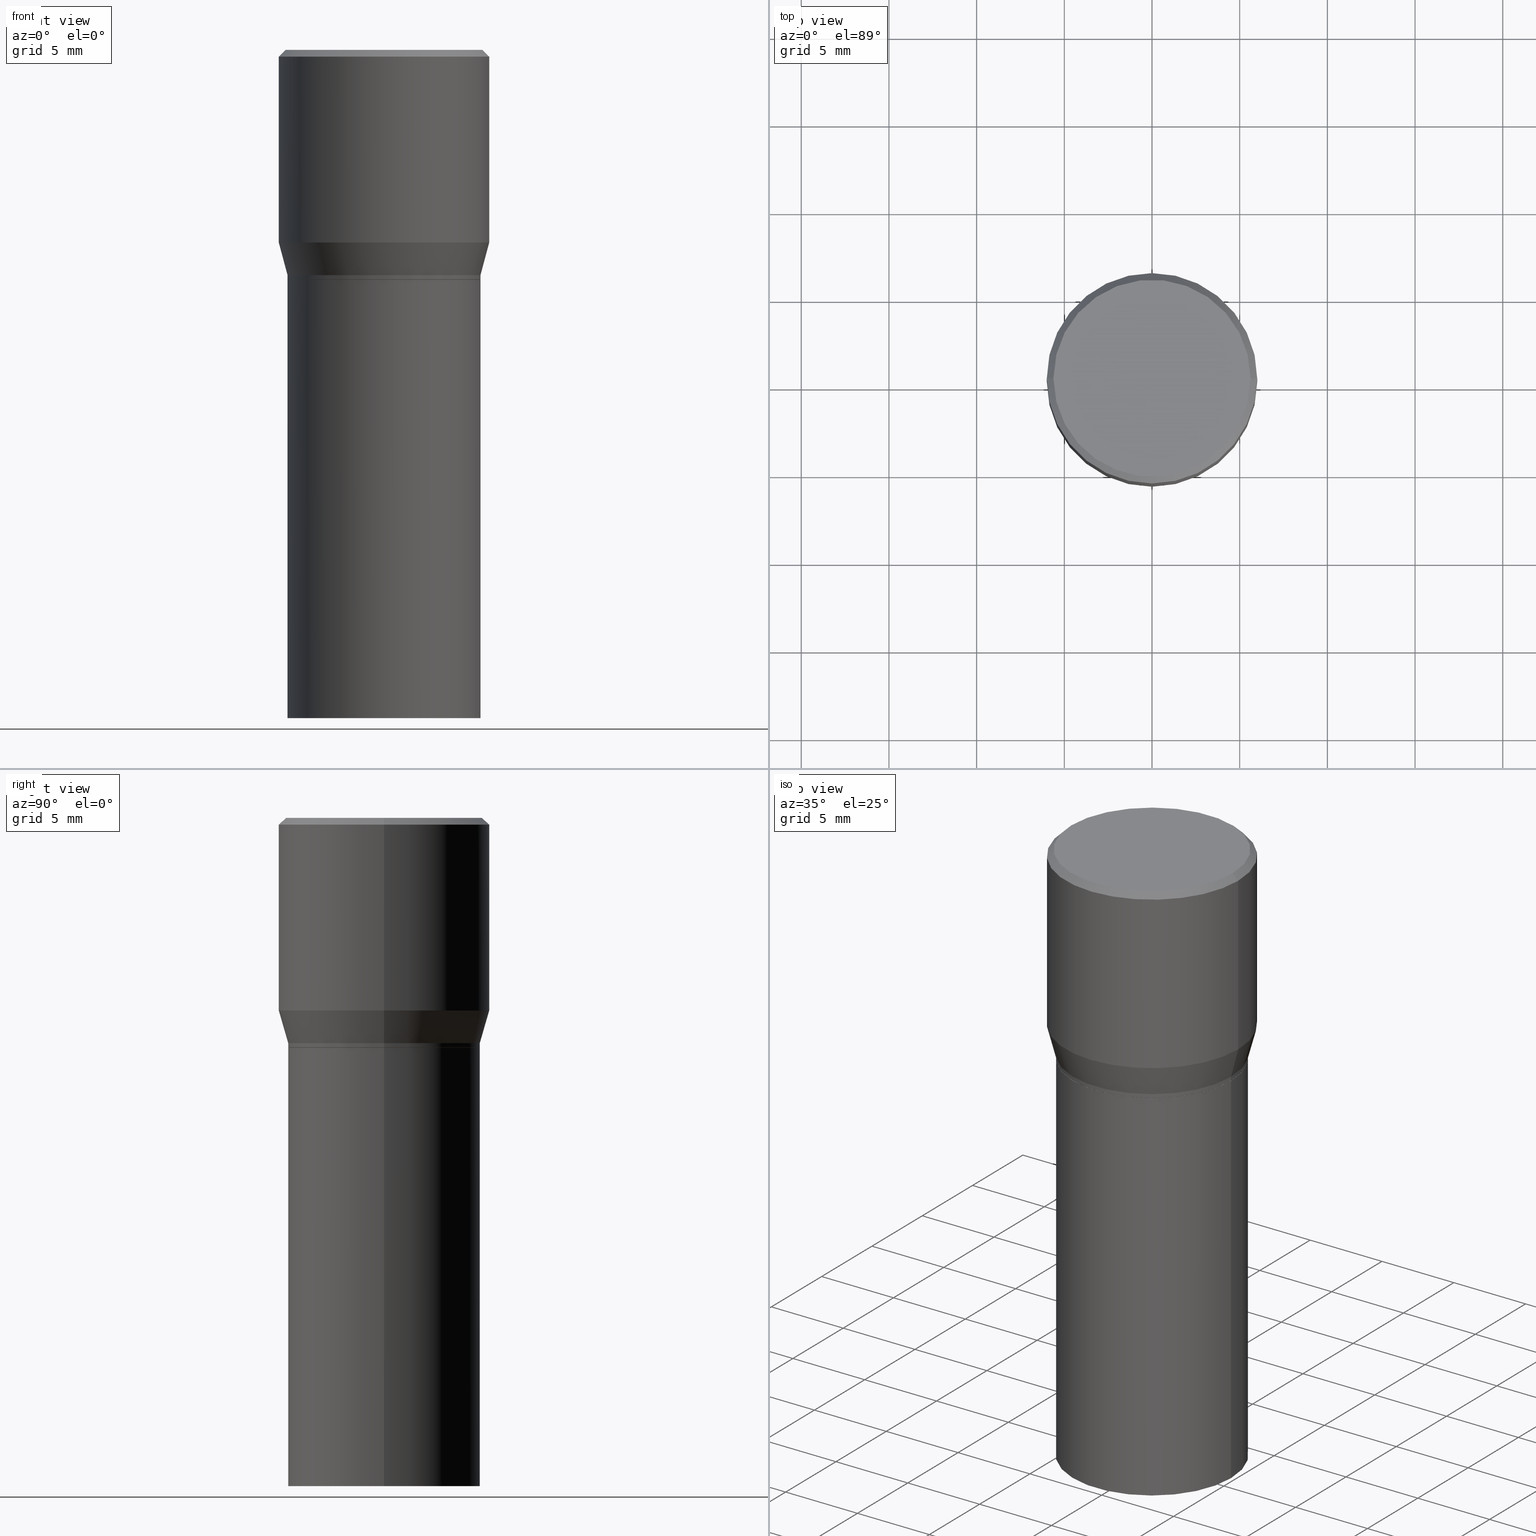
[diagram: canonical four-view strip — front | top / right | iso, engineering-drawing reading convention]
A machine part, canonical four-view strip (front | top / right | iso — engineering-drawing reading convention). The complete STEP part file that produces these views, byte-faithful:
ISO-10303-21;
HEADER;
FILE_DESCRIPTION (( 'STEP AP203' ),
    '1' );
FILE_NAME ('48557.STEP',
    '2024-03-12T19:34:08',
    ( '' ),
    ( '' ),
    'SwSTEP 2.0',
    'SolidWorks 2023',
    '' );
FILE_SCHEMA (( 'CONFIG_CONTROL_DESIGN' ));
ENDSEC;

DATA;
#1 = EDGE_CURVE ( 'NONE', #254, #329, #35, .T. ) ;
#2 = COORDINATED_UNIVERSAL_TIME_OFFSET ( 5, 0, .BEHIND. ) ;
#3 = CONICAL_SURFACE ( 'NONE', #295, 0.2160500000000000198, 0.7853981633974824739 ) ;
#4 = APPROVAL_STATUS ( 'not_yet_approved' ) ;
#5 = ADVANCED_FACE ( 'NONE', ( #237 ), #180, .T. ) ;
#6 = CC_DESIGN_DATE_AND_TIME_ASSIGNMENT ( #183, #152, ( #232 ) ) ;
#7 = APPROVAL_ROLE ( '' ) ;
#8 = PERSON_AND_ORGANIZATION_ROLE ( 'classification_officer' ) ;
#9 = VERTEX_POINT ( 'NONE', #136 ) ;
#10 = AXIS2_PLACEMENT_3D ( 'NONE', #450, #162, #415 ) ;
#11 = LOCAL_TIME ( 15, 34, 8.000000000000000000, #88 ) ;
#12 = APPROVAL_STATUS ( 'not_yet_approved' ) ;
#13 = VERTEX_POINT ( 'NONE', #310 ) ;
#14 = CC_DESIGN_PERSON_AND_ORGANIZATION_ASSIGNMENT ( #218, #124, ( #232 ) ) ;
#15 = ORIENTED_EDGE ( 'NONE', *, *, #197, .F. ) ;
#16 = ORIENTED_EDGE ( 'NONE', *, *, #362, .T. ) ;
#17 = CARTESIAN_POINT ( 'NONE',  ( 3.668203209277704895E-29, -5.237222008264718177E-15, -1.500000000000000222 ) ) ;
#18 = ADVANCED_FACE ( 'NONE', ( #207 ), #58, .F. ) ;
#19 = VECTOR ( 'NONE', #29, 39.37007874015748854 ) ;
#20 = CARTESIAN_POINT ( 'NONE',  ( -0.2160500000000000198, -2.627801186576033655E-16, -0.5157000000000001583 ) ) ;
#21 = PLANE ( 'NONE',  #10 ) ;
#22 = DIRECTION ( 'NONE',  ( -2.445468806185136877E-29, 3.491481338843145188E-15, 1.000000000000000000 ) ) ;
#23 = EDGE_CURVE ( 'NONE', #329, #254, #172, .T. ) ;
#24 = CARTESIAN_POINT ( 'NONE',  ( 0.2160500000000000198, -3.309226012955529172E-15, -0.5157000000000001583 ) ) ;
#25 = CARTESIAN_POINT ( 'NONE',  ( -0.2165500000000000480, -2.269618187644819696E-16, -0.5057000000000001494 ) ) ;
#26 = AXIS2_PLACEMENT_3D ( 'NONE', #133, #228, #455 ) ;
#27 = SECURITY_CLASSIFICATION ( '', '', #253 ) ;
#28 = LINE ( 'NONE', #24, #83 ) ;
#29 = DIRECTION ( 'NONE',  ( -0.7071067811865715536, 7.493145998870439357E-15, 0.7071067811865232589 ) ) ;
#30 = ADVANCED_FACE ( 'NONE', ( #449 ), #448, .T. ) ;
#31 = DIRECTION ( 'NONE',  ( -2.445468806185136597E-29, 3.491481338843145583E-15, 1.000000000000000000 ) ) ;
#32 = CARTESIAN_POINT ( 'NONE',  ( 0.2212000000000000077, -1.595182002131672613E-15, 4.701447564593453826E-17 ) ) ;
#33 = APPLICATION_CONTEXT ( 'configuration controlled 3d designs of mechanical parts and assemblies' ) ;
#34 = FACE_OUTER_BOUND ( 'NONE', #224, .T. ) ;
#35 = CIRCLE ( 'NONE', #156, 0.2165500000000000203 ) ;
#36 = AXIS2_PLACEMENT_3D ( 'NONE', #122, #81, #354 ) ;
#37 = DIRECTION ( 'NONE',  ( -2.445468806185136597E-29, 3.491481338843145583E-15, 1.000000000000000000 ) ) ;
#38 = EDGE_LOOP ( 'NONE', ( #191, #111, #443, #261 ) ) ;
#39 = DIRECTION ( 'NONE',  ( -2.445468806185136597E-29, 3.491481338843145583E-15, 1.000000000000000000 ) ) ;
#40 = DATE_AND_TIME ( #217, #462 ) ;
#41 = PERSON_AND_ORGANIZATION ( #60, #190 ) ;
#42 = CONICAL_SURFACE ( 'NONE', #91, 0.2165500000000000480, 0.2617993877991494078 ) ;
#43 = AXIS2_PLACEMENT_3D ( 'NONE', #208, #349, #464 ) ;
#44 = DESIGN_CONTEXT ( 'detailed design', #33, 'design' ) ;
#45 = ORIENTED_EDGE ( 'NONE', *, *, #360, .F. ) ;
#46 = APPROVAL_DATE_TIME ( #262, #273 ) ;
#47 = EDGE_LOOP ( 'NONE', ( #161, #327 ) ) ;
#48 = PERSON_AND_ORGANIZATION_ROLE ( 'design_supplier' ) ;
#49 = ORIENTED_EDGE ( 'NONE', *, *, #252, .F. ) ;
#50 = VECTOR ( 'NONE', #168, 39.37007874015748143 ) ;
#51 = LOCAL_TIME ( 15, 34, 8.000000000000000000, #82 ) ;
#52 = ORIENTED_EDGE ( 'NONE', *, *, #296, .T. ) ;
#53 = ORIENTED_EDGE ( 'NONE', *, *, #258, .F. ) ;
#54 = CARTESIAN_POINT ( 'NONE',  ( 3.668203209277705088E-31, -5.237222008264718399E-17, -0.01499999999999999944 ) ) ;
#55 = VERTEX_POINT ( 'NONE', #20 ) ;
#56 = CARTESIAN_POINT ( 'NONE',  ( 1.236673575287824021E-29, -1.765642113052979313E-15, -0.5057000000000001494 ) ) ;
#57 = CIRCLE ( 'NONE', #374, 0.2361999999999999933 ) ;
#58 = PLANE ( 'NONE',  #330 ) ;
#59 = CARTESIAN_POINT ( 'NONE',  ( 3.668203209277705088E-31, -5.237222008264718399E-17, -0.01499999999999999944 ) ) ;
#60 = PERSON ( 'UNSPECIFIED', 'UNSPECIFIED', 'UNSPECIFIED', ('UNSPECIFIED'), ('UNSPECIFIED'), ('UNSPECIFIED') ) ;
#61 = FACE_OUTER_BOUND ( 'NONE', #121, .T. ) ;
#62 = DIRECTION ( 'NONE',  ( 1.000000000000000000, -6.982962677686267499E-15, 0.000000000000000000 ) ) ;
#63 = DIRECTION ( 'NONE',  ( 0.7071067811865715536, -2.468850131082509496E-15, 0.7071067811865232589 ) ) ;
#64 = AXIS2_PLACEMENT_3D ( 'NONE', #17, #343, #340 ) ;
#65 = APPROVAL_PERSON_ORGANIZATION ( #189, #307, #7 ) ;
#66 = DIRECTION ( 'NONE',  ( -2.445468806185136597E-29, 3.491481338843145583E-15, 1.000000000000000000 ) ) ;
#67 = FACE_OUTER_BOUND ( 'NONE', #409, .T. ) ;
#68 = DIRECTION ( 'NONE',  ( -2.438088387897960049E-29, 3.491481338843145188E-15, 1.000000000000000000 ) ) ;
#69 = PLANE ( 'NONE',  #43 ) ;
#70 = EDGE_CURVE ( 'NONE', #13, #363, #445, .T. ) ;
#71 = CARTESIAN_POINT ( 'NONE',  ( -1.149724336312568861E-45, 1.641501643732376549E-31, 4.701447564592356200E-17 ) ) ;
#72 = EDGE_LOOP ( 'NONE', ( #402, #87, #221, #45 ) ) ;
#73 = APPROVAL_PERSON_ORGANIZATION ( #437, #273, #153 ) ;
#74 = DIRECTION ( 'NONE',  ( -2.438088387897960049E-29, 3.491481338843145188E-15, 1.000000000000000000 ) ) ;
#75 = ORIENTED_EDGE ( 'NONE', *, *, #245, .T. ) ;
#76 = EDGE_CURVE ( 'NONE', #369, #284, #211, .T. ) ;
#77 = CARTESIAN_POINT ( 'NONE',  ( -0.2165500000000000203, -2.601308914834925589E-16, -0.5152000000000002133 ) ) ;
#78 = DIRECTION ( 'NONE',  ( -2.445468806185136877E-29, 3.491481338843145188E-15, 1.000000000000000000 ) ) ;
#79 = ADVANCED_BREP_SHAPE_REPRESENTATION ( '48557', ( #453, #281, #430 ), #352 ) ;
#80 = VERTEX_POINT ( 'NONE', #198 ) ;
#81 = DIRECTION ( 'NONE',  ( -2.445468806185136597E-29, 3.491481338843145583E-15, 1.000000000000000000 ) ) ;
#82 = COORDINATED_UNIVERSAL_TIME_OFFSET ( 5, 0, .BEHIND. ) ;
#83 = VECTOR ( 'NONE', #63, 39.37007874015748854 ) ;
#84 = ORIENTED_EDGE ( 'NONE', *, *, #452, .F. ) ;
#85 = CIRCLE ( 'NONE', #98, 0.2361999999999999933 ) ;
#86 = APPLICATION_PROTOCOL_DEFINITION ( 'international standard', 'config_control_design', 1994, #33 ) ;
#87 = ORIENTED_EDGE ( 'NONE', *, *, #23, .T. ) ;
#88 = COORDINATED_UNIVERSAL_TIME_OFFSET ( 5, 0, .BEHIND. ) ;
#89 = ORIENTED_EDGE ( 'NONE', *, *, #362, .F. ) ;
#90 = ORIENTED_EDGE ( 'NONE', *, *, #197, .T. ) ;
#91 = AXIS2_PLACEMENT_3D ( 'NONE', #56, #101, #167 ) ;
#92 = VERTEX_POINT ( 'NONE', #142 ) ;
#93 = CARTESIAN_POINT ( 'NONE',  ( 0.2361999999999999933, -1.672821847156282947E-15, -0.01499999999999999944 ) ) ;
#94 = ADVANCED_FACE ( 'NONE', ( #269 ), #314, .T. ) ;
#95 = EDGE_LOOP ( 'NONE', ( #49, #399 ) ) ;
#96 = DIRECTION ( 'NONE',  ( 1.000000000000000000, -6.982962677686265133E-15, 0.000000000000000000 ) ) ;
#97 = CIRCLE ( 'NONE', #188, 0.2212000000000000077 ) ;
#98 = AXIS2_PLACEMENT_3D ( 'NONE', #106, #395, #460 ) ;
#99 = DIRECTION ( 'NONE',  ( -2.445468806185136597E-29, 3.491481338843145583E-15, 1.000000000000000000 ) ) ;
#100 = CARTESIAN_POINT ( 'NONE',  ( 1.261128263349675426E-29, -1.800556926441410962E-15, -0.5157000000000001583 ) ) ;
#101 = DIRECTION ( 'NONE',  ( -2.445468806185136597E-29, 3.491481338843145583E-15, 1.000000000000000000 ) ) ;
#102 = DIRECTION ( 'NONE',  ( -2.445468806185136597E-29, 3.491481338843145583E-15, 1.000000000000000000 ) ) ;
#103 = DIRECTION ( 'NONE',  ( 1.000000000000000000, -6.982962677686267499E-15, 4.877828720335458505E-29 ) ) ;
#104 = VECTOR ( 'NONE', #131, 39.37007874015748143 ) ;
#105 = CYLINDRICAL_SURFACE ( 'NONE', #400, 0.2165500000000000480 ) ;
#106 = CARTESIAN_POINT ( 'NONE',  ( 1.057335613469222325E-29, -1.509595033060739709E-15, -0.4323652016312719004 ) ) ;
#107 = CARTESIAN_POINT ( 'NONE',  ( -0.2165500000000000480, -2.912745497993258696E-17, -0.5057000000000001494 ) ) ;
#108 = EDGE_LOOP ( 'NONE', ( #446, #393, #129, #263 ) ) ;
#109 = EDGE_CURVE ( 'NONE', #55, #80, #344, .T. ) ;
#110 = LENGTH_MEASURE_WITH_UNIT ( LENGTH_MEASURE( 0.02539999999999999897 ), #389 );
#111 = ORIENTED_EDGE ( 'NONE', *, *, #109, .T. ) ;
#112 = CONICAL_SURFACE ( 'NONE', #119, 0.2361999999999999933, 0.7853981633974459475 ) ;
#113 = FACE_OUTER_BOUND ( 'NONE', #192, .T. ) ;
#114 = PERSON_AND_ORGANIZATION_ROLE ( 'creator' ) ;
#115 = ORIENTED_EDGE ( 'NONE', *, *, #383, .T. ) ;
#116 = APPROVAL_ROLE ( '' ) ;
#117 = ORIENTED_EDGE ( 'NONE', *, *, #70, .F. ) ;
#118 = ADVANCED_FACE ( 'NONE', ( #61 ), #112, .T. ) ;
#119 = AXIS2_PLACEMENT_3D ( 'NONE', #457, #205, #200 ) ;
#120 = APPROVAL_DATE_TIME ( #323, #307 ) ;
#121 = EDGE_LOOP ( 'NONE', ( #53, #15, #219, #438 ) ) ;
#122 = CARTESIAN_POINT ( 'NONE',  ( 0.000000000000000000, 0.000000000000000000, 0.000000000000000000 ) ) ;
#123 = ORIENTED_EDGE ( 'NONE', *, *, #291, .T. ) ;
#124 = PERSON_AND_ORGANIZATION_ROLE ( 'creator' ) ;
#125 = ORIENTED_EDGE ( 'NONE', *, *, #141, .T. ) ;
#126 = ADVANCED_FACE ( 'NONE', ( #454 ), #105, .T. ) ;
#127 = VERTEX_POINT ( 'NONE', #342 ) ;
#128 = DIRECTION ( 'NONE',  ( -2.445468806185136877E-29, 3.491481338843145188E-15, 1.000000000000000000 ) ) ;
#129 = ORIENTED_EDGE ( 'NONE', *, *, #226, .T. ) ;
#130 = CC_DESIGN_PERSON_AND_ORGANIZATION_ASSIGNMENT ( #328, #114, ( #223 ) ) ;
#131 = DIRECTION ( 'NONE',  ( 0.7071067811865459074, -7.319954787623251312E-15, -0.7071067811865492381 ) ) ;
#132 = DIRECTION ( 'NONE',  ( -2.445468806185136597E-29, 3.491481338843145583E-15, 1.000000000000000000 ) ) ;
#133 = CARTESIAN_POINT ( 'NONE',  ( 3.668203209277705088E-31, -5.237222008264718399E-17, -0.01499999999999999944 ) ) ;
#134 = DIRECTION ( 'NONE',  ( 1.000000000000000000, -6.982962677686265133E-15, 0.000000000000000000 ) ) ;
#135 = FACE_OUTER_BOUND ( 'NONE', #47, .T. ) ;
#136 = CARTESIAN_POINT ( 'NONE',  ( 0.2165500000000000480, -3.277802680905940530E-15, -0.5057000000000001494 ) ) ;
#137 = LINE ( 'NONE', #272, #317 ) ;
#138 = DIRECTION ( 'NONE',  ( -2.445468806185136597E-29, 3.491481338843145583E-15, 1.000000000000000000 ) ) ;
#139 = CARTESIAN_POINT ( 'NONE',  ( 0.000000000000000000, 0.000000000000000000, 0.000000000000000000 ) ) ;
#140 = EDGE_CURVE ( 'NONE', #80, #254, #28, .T. ) ;
#141 = EDGE_CURVE ( 'NONE', #92, #363, #411, .T. ) ;
#142 = CARTESIAN_POINT ( 'NONE',  ( 0.2165500000000000203, -6.749382576117678999E-15, -1.500000000000000222 ) ) ;
#143 = CARTESIAN_POINT ( 'NONE',  ( 1.236673575287824021E-29, -1.765642113052979313E-15, -0.5057000000000001494 ) ) ;
#144 = CARTESIAN_POINT ( 'NONE',  ( 0.2361999999999999933, -1.649375784469496131E-15, 1.151752954443000088E-29 ) ) ;
#145 = VECTOR ( 'NONE', #239, 39.37007874015748854 ) ;
#146 = CARTESIAN_POINT ( 'NONE',  ( 0.000000000000000000, 0.000000000000000000, 0.000000000000000000 ) ) ;
#147 = DIRECTION ( 'NONE',  ( -2.445468806185136597E-29, 3.491481338843145583E-15, 1.000000000000000000 ) ) ;
#148 = EDGE_CURVE ( 'NONE', #363, #13, #420, .T. ) ;
#149 = EDGE_LOOP ( 'NONE', ( #163, #332, #334, #266 ) ) ;
#150 = CIRCLE ( 'NONE', #461, 0.2165500000000000203 ) ;
#151 = APPROVAL_PERSON_ORGANIZATION ( #159, #289, #116 ) ;
#152 = DATE_TIME_ROLE ( 'creation_date' ) ;
#153 = APPROVAL_ROLE ( '' ) ;
#154 = APPROVAL_DATE_TIME ( #364, #289 ) ;
#155 = EDGE_LOOP ( 'NONE', ( #425, #193, #16, #405 ) ) ;
#156 = AXIS2_PLACEMENT_3D ( 'NONE', #306, #233, #347 ) ;
#157 = AXIS2_PLACEMENT_3D ( 'NONE', #143, #175, #313 ) ;
#158 = ORIENTED_EDGE ( 'NONE', *, *, #325, .T. ) ;
#159 = PERSON_AND_ORGANIZATION ( #60, #190 ) ;
#160 = ORIENTED_EDGE ( 'NONE', *, *, #226, .F. ) ;
#161 = ORIENTED_EDGE ( 'NONE', *, *, #148, .T. ) ;
#162 = DIRECTION ( 'NONE',  ( 2.438088387897960049E-29, -3.491481338843145188E-15, -1.000000000000000000 ) ) ;
#163 = ORIENTED_EDGE ( 'NONE', *, *, #1, .T. ) ;
#164 = CONICAL_SURFACE ( 'NONE', #26, 0.2361999999999999933, 0.7853981633974459475 ) ;
#165 = EDGE_CURVE ( 'NONE', #254, #9, #375, .T. ) ;
#166 = DIRECTION ( 'NONE',  ( -2.445468806185136597E-29, 3.491481338843145583E-15, 1.000000000000000000 ) ) ;
#167 = DIRECTION ( 'NONE',  ( 1.000000000000000000, -6.982962677686266711E-15, 0.000000000000000000 ) ) ;
#168 = DIRECTION ( 'NONE',  ( -2.445468806185136877E-29, 3.491481338843145188E-15, 1.000000000000000000 ) ) ;
#169 = FACE_OUTER_BOUND ( 'NONE', #297, .T. ) ;
#170 = CARTESIAN_POINT ( 'NONE',  ( 0.000000000000000000, 0.000000000000000000, 0.000000000000000000 ) ) ;
#171 = DIRECTION ( 'NONE',  ( -0.2588190451025206840, 5.211531920934545520E-15, 0.9659258262890682012 ) ) ;
#172 = CIRCLE ( 'NONE', #401, 0.2165500000000000203 ) ;
#173 = AXIS2_PLACEMENT_3D ( 'NONE', #419, #74, #275 ) ;
#174 = DIRECTION ( 'NONE',  ( -2.445468806185136597E-29, 3.491481338843145583E-15, 1.000000000000000000 ) ) ;
#175 = DIRECTION ( 'NONE',  ( -2.445468806185136597E-29, 3.491481338843145583E-15, 1.000000000000000000 ) ) ;
#176 = DIRECTION ( 'NONE',  ( 1.000000000000000000, -6.982962677686268288E-15, 0.000000000000000000 ) ) ;
#177 = DIRECTION ( 'NONE',  ( -2.445468806185136597E-29, 3.491481338843145583E-15, 1.000000000000000000 ) ) ;
#178 = EDGE_CURVE ( 'NONE', #329, #322, #418, .T. ) ;
#179 = CARTESIAN_POINT ( 'NONE',  ( 0.2165500000000000480, -3.277802680905940530E-15, -0.5057000000000001494 ) ) ;
#180 = CONICAL_SURFACE ( 'NONE', #406, 0.2160500000000000198, 0.7853981633974824739 ) ;
#181 = DIRECTION ( 'NONE',  ( 1.000000000000000000, -6.982962677686267499E-15, 0.000000000000000000 ) ) ;
#182 = FACE_OUTER_BOUND ( 'NONE', #427, .T. ) ;
#183 = DATE_AND_TIME ( #432, #359 ) ;
#184 = AXIS2_PLACEMENT_3D ( 'NONE', #247, #37, #283 ) ;
#185 = PERSON_AND_ORGANIZATION_ROLE ( 'design_owner' ) ;
#186 = DIRECTION ( 'NONE',  ( 1.000000000000000000, 0.000000000000000000, 0.000000000000000000 ) ) ;
#187 = VERTEX_POINT ( 'NONE', #357 ) ;
#188 = AXIS2_PLACEMENT_3D ( 'NONE', #422, #382, #103 ) ;
#189 = PERSON_AND_ORGANIZATION ( #60, #190 ) ;
#190 = ORGANIZATION ( 'UNSPECIFIED', 'UNSPECIFIED', '' ) ;
#191 = ORIENTED_EDGE ( 'NONE', *, *, #356, .F. ) ;
#192 = EDGE_LOOP ( 'NONE', ( #288, #305, #351, #160 ) ) ;
#193 = ORIENTED_EDGE ( 'NONE', *, *, #360, .T. ) ;
#194 = CIRCLE ( 'NONE', #64, 0.2165500000000000203 ) ;
#195 = ORIENTED_EDGE ( 'NONE', *, *, #109, .F. ) ;
#196 = AXIS2_PLACEMENT_3D ( 'NONE', #377, #102, #416 ) ;
#197 = EDGE_CURVE ( 'NONE', #436, #404, #222, .T. ) ;
#198 = CARTESIAN_POINT ( 'NONE',  ( 0.2160500000000000198, -3.309226012955529172E-15, -0.5157000000000001583 ) ) ;
#199 = DIRECTION ( 'NONE',  ( 1.000000000000000000, -6.982962677686264344E-15, 0.000000000000000000 ) ) ;
#200 = DIRECTION ( 'NONE',  ( -1.000000000000000000, 6.982962677686266711E-15, 0.000000000000000000 ) ) ;
#201 = LINE ( 'NONE', #25, #304 ) ;
#202 = DIMENSIONAL_EXPONENTS ( 1.000000000000000000, 0.000000000000000000, 0.000000000000000000, 0.000000000000000000, 0.000000000000000000, 0.000000000000000000, 0.000000000000000000 ) ;
#203 = CARTESIAN_POINT ( 'NONE',  ( 0.2165500000000000203, -1.512160567852961217E-15, 1.055936080798610036E-29 ) ) ;
#204 = AXIS2_PLACEMENT_3D ( 'NONE', #459, #166, #176 ) ;
#205 = DIRECTION ( 'NONE',  ( 2.445468806185136597E-29, -3.491481338843145583E-15, -1.000000000000000000 ) ) ;
#206 = CARTESIAN_POINT ( 'NONE',  ( 0.2165500000000000203, -3.312717494294371784E-15, -0.5157000000000001583 ) ) ;
#207 = FACE_OUTER_BOUND ( 'NONE', #246, .T. ) ;
#208 = CARTESIAN_POINT ( 'NONE',  ( 1.544631344304202170E-15, 0.2212000000000000077, -7.488084343291421542E-16 ) ) ;
#209 = ORIENTED_EDGE ( 'NONE', *, *, #241, .T. ) ;
#210 = ADVANCED_FACE ( 'NONE', ( #320 ), #396, .T. ) ;
#211 = CIRCLE ( 'NONE', #204, 0.2361999999999999933 ) ;
#212 = DIRECTION ( 'NONE',  ( 1.000000000000000000, -6.982962677686267499E-15, 4.877828720335458505E-29 ) ) ;
#213 = FACE_OUTER_BOUND ( 'NONE', #95, .T. ) ;
#214 = CARTESIAN_POINT ( 'NONE',  ( -0.2160500000000000198, -2.654293458317144186E-16, -0.5157000000000001583 ) ) ;
#215 =( NAMED_UNIT ( * ) SI_UNIT ( $, .STERADIAN. ) SOLID_ANGLE_UNIT ( ) );
#216 = VECTOR ( 'NONE', #128, 39.37007874015748143 ) ;
#217 = CALENDAR_DATE ( 2024, 12, 3 ) ;
#218 = PERSON_AND_ORGANIZATION ( #60, #190 ) ;
#219 = ORIENTED_EDGE ( 'NONE', *, *, #376, .T. ) ;
#220 = APPROVAL_STATUS ( 'not_yet_approved' ) ;
#221 = ORIENTED_EDGE ( 'NONE', *, *, #165, .T. ) ;
#222 = CIRCLE ( 'NONE', #331, 0.2212000000000000077 ) ;
#223 = PRODUCT_DEFINITION_FORMATION_WITH_SPECIFIED_SOURCE ( 'ANY', '', #441, .NOT_KNOWN. ) ;
#224 = EDGE_LOOP ( 'NONE', ( #90, #158 ) ) ;
#225 = ORIENTED_EDGE ( 'NONE', *, *, #140, .F. ) ;
#226 = EDGE_CURVE ( 'NONE', #284, #127, #367, .T. ) ;
#227 = ORIENTED_EDGE ( 'NONE', *, *, #148, .F. ) ;
#228 = DIRECTION ( 'NONE',  ( 2.445468806185136597E-29, -3.491481338843145583E-15, -1.000000000000000000 ) ) ;
#229 = VECTOR ( 'NONE', #267, 39.37007874015748143 ) ;
#230 = DIRECTION ( 'NONE',  ( 1.000000000000000000, -6.982962677686266711E-15, 0.000000000000000000 ) ) ;
#231 = AXIS2_PLACEMENT_3D ( 'NONE', #146, #244, #316 ) ;
#232 = PRODUCT_DEFINITION ( 'UNKNOWN', '', #223, #44 ) ;
#233 = DIRECTION ( 'NONE',  ( -2.445468806185136597E-29, 3.491481338843145583E-15, 1.000000000000000000 ) ) ;
#234 = DIRECTION ( 'NONE',  ( -2.445468806185136597E-29, 3.491481338843145583E-15, 1.000000000000000000 ) ) ;
#235 = DIRECTION ( 'NONE',  ( 1.000000000000000000, -6.982962677686265922E-15, 4.876176775795935793E-29 ) ) ;
#236 = DIRECTION ( 'NONE',  ( -2.445468806185136877E-29, 3.491481338843145188E-15, 1.000000000000000000 ) ) ;
#237 = FACE_OUTER_BOUND ( 'NONE', #365, .T. ) ;
#238 = CC_DESIGN_DATE_AND_TIME_ASSIGNMENT ( #40, #431, ( #27 ) ) ;
#239 = DIRECTION ( 'NONE',  ( 0.2588190451025206840, 1.565188264969626504E-15, 0.9659258262890682012 ) ) ;
#240 = VECTOR ( 'NONE', #22, 39.37007874015748143 ) ;
#241 = EDGE_CURVE ( 'NONE', #187, #92, #194, .T. ) ;
#242 = DIRECTION ( 'NONE',  ( 1.000000000000000000, -6.982962677686266711E-15, 4.876176775795935793E-29 ) ) ;
#243 = CARTESIAN_POINT ( 'NONE',  ( -0.2361999999999999933, 1.597003564386848854E-15, -0.01499999999999999944 ) ) ;
#244 = DIRECTION ( 'NONE',  ( -2.445468806185136597E-29, 3.491481338843145583E-15, 1.000000000000000000 ) ) ;
#245 = EDGE_CURVE ( 'NONE', #127, #339, #268, .T. ) ;
#246 = EDGE_LOOP ( 'NONE', ( #442, #195 ) ) ;
#247 = CARTESIAN_POINT ( 'NONE',  ( 1.236673575287824021E-29, -1.765642113052979313E-15, -0.5057000000000001494 ) ) ;
#248 = CIRCLE ( 'NONE', #309, 0.2160500000000000198 ) ;
#249 = CYLINDRICAL_SURFACE ( 'NONE', #278, 0.2361999999999999933 ) ;
#250 = ADVANCED_FACE ( 'NONE', ( #169 ), #164, .T. ) ;
#251 =( NAMED_UNIT ( * ) PLANE_ANGLE_UNIT ( ) SI_UNIT ( $, .RADIAN. ) );
#252 = EDGE_CURVE ( 'NONE', #92, #187, #150, .T. ) ;
#253 = SECURITY_CLASSIFICATION_LEVEL ( 'unclassified' ) ;
#254 = VERTEX_POINT ( 'NONE', #447 ) ;
#255 = VECTOR ( 'NONE', #78, 39.37007874015748143 ) ;
#256 = LOCAL_TIME ( 15, 34, 8.000000000000000000, #2 ) ;
#257 = SHAPE_DEFINITION_REPRESENTATION ( #300, #79 ) ;
#258 = EDGE_CURVE ( 'NONE', #404, #127, #346, .T. ) ;
#259 = ORIENTED_EDGE ( 'NONE', *, *, #356, .T. ) ;
#260 = CARTESIAN_POINT ( 'NONE',  ( 0.000000000000000000, 0.000000000000000000, 0.000000000000000000 ) ) ;
#261 = ORIENTED_EDGE ( 'NONE', *, *, #23, .F. ) ;
#262 = DATE_AND_TIME ( #433, #11 ) ;
#263 = ORIENTED_EDGE ( 'NONE', *, *, #301, .F. ) ;
#264 = ORIENTED_EDGE ( 'NONE', *, *, #252, .T. ) ;
#265 = ADVANCED_FACE ( 'NONE', ( #135 ), #21, .F. ) ;
#266 = ORIENTED_EDGE ( 'NONE', *, *, #165, .F. ) ;
#267 = DIRECTION ( 'NONE',  ( -2.445468806185136877E-29, 3.491481338843145188E-15, 1.000000000000000000 ) ) ;
#268 = CIRCLE ( 'NONE', #392, 0.2361999999999999933 ) ;
#269 = FACE_OUTER_BOUND ( 'NONE', #108, .T. ) ;
#270 = CARTESIAN_POINT ( 'NONE',  ( 1.261128263349675426E-29, -1.800556926441410962E-15, -0.5157000000000001583 ) ) ;
#271 = CARTESIAN_POINT ( 'NONE',  ( 0.000000000000000000, 0.000000000000000000, 0.000000000000000000 ) ) ;
#272 = CARTESIAN_POINT ( 'NONE',  ( -0.2361999999999999933, 1.678301941865356591E-15, -1.161852468318208757E-29 ) ) ;
#273 = APPROVAL ( #4, 'UNSPECIFIED' ) ;
#274 = CARTESIAN_POINT ( 'NONE',  ( 0.2165500000000000480, -1.512160567852961414E-15, 1.055936080798610176E-29 ) ) ;
#275 = DIRECTION ( 'NONE',  ( 1.000000000000000000, -6.982962677686265922E-15, 4.876176775795935793E-29 ) ) ;
#276 = DIRECTION ( 'NONE',  ( 1.000000000000000000, -6.982962677686266711E-15, 4.876176775795936353E-29 ) ) ;
#277 = LINE ( 'NONE', #179, #145 ) ;
#278 = AXIS2_PLACEMENT_3D ( 'NONE', #139, #39, #319 ) ;
#279 = ADVANCED_FACE ( 'NONE', ( #417 ), #42, .T. ) ;
#280 = CARTESIAN_POINT ( 'NONE',  ( -0.2212000000000000077, 1.570817454345525709E-15, 4.701447564591266586E-17 ) ) ;
#281 = MANIFOLD_SOLID_BREP ( 'Body-Move/Copy2[2]', #373 ) ;
#282 = DIRECTION ( 'NONE',  ( -2.445468806185136597E-29, 3.491481338843145583E-15, 1.000000000000000000 ) ) ;
#283 = DIRECTION ( 'NONE',  ( 1.000000000000000000, -6.982962677686266711E-15, 0.000000000000000000 ) ) ;
#284 = VERTEX_POINT ( 'NONE', #378 ) ;
#285 = ADVANCED_FACE ( 'NONE', ( #370 ), #3, .T. ) ;
#286 = DIRECTION ( 'NONE',  ( 1.000000000000000000, -6.982962677686266711E-15, 0.000000000000000000 ) ) ;
#287 = PERSON_AND_ORGANIZATION ( #60, #190 ) ;
#288 = ORIENTED_EDGE ( 'NONE', *, *, #452, .T. ) ;
#289 = APPROVAL ( #220, 'UNSPECIFIED' ) ;
#290 = MECHANICAL_CONTEXT ( 'NONE', #439, 'mechanical' ) ;
#291 = EDGE_CURVE ( 'NONE', #322, #369, #201, .T. ) ;
#292 = EDGE_CURVE ( 'NONE', #369, #339, #137, .T. ) ;
#293 = PERSON_AND_ORGANIZATION ( #60, #190 ) ;
#294 = ORIENTED_EDGE ( 'NONE', *, *, #376, .F. ) ;
#295 = AXIS2_PLACEMENT_3D ( 'NONE', #270, #410, #62 ) ;
#296 = EDGE_CURVE ( 'NONE', #187, #13, #303, .T. ) ;
#297 = EDGE_LOOP ( 'NONE', ( #302, #407, #75, #294 ) ) ;
#298 = CALENDAR_DATE ( 2024, 12, 3 ) ;
#299 = ORIENTED_EDGE ( 'NONE', *, *, #388, .T. ) ;
#300 = PRODUCT_DEFINITION_SHAPE ( 'NONE', 'NONE',  #232 ) ;
#301 = EDGE_CURVE ( 'NONE', #339, #127, #57, .T. ) ;
#302 = ORIENTED_EDGE ( 'NONE', *, *, #325, .F. ) ;
#303 = LINE ( 'NONE', #444, #216 ) ;
#304 = VECTOR ( 'NONE', #171, 39.37007874015748854 ) ;
#305 = ORIENTED_EDGE ( 'NONE', *, *, #292, .T. ) ;
#306 = CARTESIAN_POINT ( 'NONE',  ( 1.259905528946582905E-29, -1.798811185771989458E-15, -0.5152000000000002133 ) ) ;
#307 = APPROVAL ( #12, 'UNSPECIFIED' ) ;
#308 = CARTESIAN_POINT ( 'NONE',  ( 1.261128263349675426E-29, -1.800556926441410962E-15, -0.5157000000000001583 ) ) ;
#309 = AXIS2_PLACEMENT_3D ( 'NONE', #458, #147, #181 ) ;
#310 = CARTESIAN_POINT ( 'NONE',  ( -0.2165500000000000203, -1.980209173064567670E-15, -0.5157000000000001583 ) ) ;
#311 = DIRECTION ( 'NONE',  ( 1.000000000000000000, -6.982962677686266711E-15, 0.000000000000000000 ) ) ;
#312 = CARTESIAN_POINT ( 'NONE',  ( 1.261128263349675426E-29, -1.800556926441410962E-15, -0.5157000000000001583 ) ) ;
#313 = DIRECTION ( 'NONE',  ( 1.000000000000000000, -6.982962677686266711E-15, 0.000000000000000000 ) ) ;
#314 = CYLINDRICAL_SURFACE ( 'NONE', #429, 0.2361999999999999933 ) ;
#315 = DIRECTION ( 'NONE',  ( -0.7071067811865459074, 2.468850131082239706E-15, -0.7071067811865492381 ) ) ;
#316 = DIRECTION ( 'NONE',  ( 1.000000000000000000, -6.982962677686266711E-15, 4.876176775795935793E-29 ) ) ;
#317 = VECTOR ( 'NONE', #236, 39.37007874015748143 ) ;
#318 = CC_DESIGN_APPROVAL ( #307, ( #27 ) ) ;
#319 = DIRECTION ( 'NONE',  ( 1.000000000000000000, -6.982962677686266711E-15, 4.876176775795936353E-29 ) ) ;
#320 = FACE_OUTER_BOUND ( 'NONE', #368, .T. ) ;
#321 = CYLINDRICAL_SURFACE ( 'NONE', #231, 0.2165500000000000203 ) ;
#322 = VERTEX_POINT ( 'NONE', #107 ) ;
#323 = DATE_AND_TIME ( #298, #256 ) ;
#324 = CIRCLE ( 'NONE', #394, 0.2165500000000000480 ) ;
#325 = EDGE_CURVE ( 'NONE', #404, #436, #97, .T. ) ;
#326 = CALENDAR_DATE ( 2024, 12, 3 ) ;
#327 = ORIENTED_EDGE ( 'NONE', *, *, #70, .T. ) ;
#328 = PERSON_AND_ORGANIZATION ( #60, #190 ) ;
#329 = VERTEX_POINT ( 'NONE', #77 ) ;
#330 = AXIS2_PLACEMENT_3D ( 'NONE', #308, #68, #235 ) ;
#331 = AXIS2_PLACEMENT_3D ( 'NONE', #71, #282, #212 ) ;
#332 = ORIENTED_EDGE ( 'NONE', *, *, #178, .T. ) ;
#333 = ADVANCED_FACE ( 'NONE', ( #67 ), #380, .T. ) ;
#334 = ORIENTED_EDGE ( 'NONE', *, *, #388, .F. ) ;
#335 = ORIENTED_EDGE ( 'NONE', *, *, #1, .F. ) ;
#336 = CIRCLE ( 'NONE', #157, 0.2165500000000000480 ) ;
#337 = PRODUCT_RELATED_PRODUCT_CATEGORY ( 'detail', '', ( #441 ) ) ;
#338 = CC_DESIGN_SECURITY_CLASSIFICATION ( #27, ( #223 ) ) ;
#339 = VERTEX_POINT ( 'NONE', #385 ) ;
#340 = DIRECTION ( 'NONE',  ( 1.000000000000000000, -6.982962677686264344E-15, 0.000000000000000000 ) ) ;
#341 = DIRECTION ( 'NONE',  ( 1.000000000000000000, -6.982962677686266711E-15, 4.876176775795935793E-29 ) ) ;
#342 = CARTESIAN_POINT ( 'NONE',  ( 0.2361999999999999933, -1.701748004552143407E-15, -0.01499999999999999944 ) ) ;
#343 = DIRECTION ( 'NONE',  ( -2.445468806185136597E-29, 3.491481338843145583E-15, 1.000000000000000000 ) ) ;
#344 = CIRCLE ( 'NONE', #196, 0.2160500000000000198 ) ;
#345 = CARTESIAN_POINT ( 'NONE',  ( -0.2165500000000000480, 1.538680294288497294E-15, -1.065195393794700063E-29 ) ) ;
#346 = LINE ( 'NONE', #93, #104 ) ;
#347 = DIRECTION ( 'NONE',  ( 1.000000000000000000, -6.982962677686266711E-15, 0.000000000000000000 ) ) ;
#348 = PLANE ( 'NONE',  #173 ) ;
#349 = DIRECTION ( 'NONE',  ( 2.438088387897960049E-29, -3.491481338843145188E-15, -1.000000000000000000 ) ) ;
#350 = DIRECTION ( 'NONE',  ( 1.000000000000000000, -6.982962677686266711E-15, 0.000000000000000000 ) ) ;
#351 = ORIENTED_EDGE ( 'NONE', *, *, #245, .F. ) ;
#352 =( GEOMETRIC_REPRESENTATION_CONTEXT ( 3 ) GLOBAL_UNCERTAINTY_ASSIGNED_CONTEXT ( ( #386 ) ) GLOBAL_UNIT_ASSIGNED_CONTEXT ( ( #426, #251, #215 ) ) REPRESENTATION_CONTEXT ( 'NONE', 'WORKASPACE' ) );
#353 = DIRECTION ( 'NONE',  ( -2.445468806185136597E-29, 3.491481338843145583E-15, 1.000000000000000000 ) ) ;
#354 = DIRECTION ( 'NONE',  ( 1.000000000000000000, -6.982962677686266711E-15, 4.876176775795935793E-29 ) ) ;
#355 = DIRECTION ( 'NONE',  ( 0.000000000000000000, 0.000000000000000000, 1.000000000000000000 ) ) ;
#356 = EDGE_CURVE ( 'NONE', #55, #329, #391, .T. ) ;
#357 = CARTESIAN_POINT ( 'NONE',  ( -0.2165500000000000203, -1.980209173064567670E-15, -1.500000000000000222 ) ) ;
#358 = AXIS2_PLACEMENT_3D ( 'NONE', #271, #66, #341 ) ;
#359 = LOCAL_TIME ( 15, 34, 8.000000000000000000, #440 ) ;
#360 = EDGE_CURVE ( 'NONE', #322, #9, #336, .T. ) ;
#361 = APPLICATION_PROTOCOL_DEFINITION ( 'international standard', 'config_control_design', 1994, #439 ) ;
#362 = EDGE_CURVE ( 'NONE', #9, #284, #277, .T. ) ;
#363 = VERTEX_POINT ( 'NONE', #206 ) ;
#364 = DATE_AND_TIME ( #326, #51 ) ;
#365 = EDGE_LOOP ( 'NONE', ( #115, #259, #335, #225 ) ) ;
#366 = AXIS2_PLACEMENT_3D ( 'NONE', #312, #138, #96 ) ;
#367 = LINE ( 'NONE', #144, #255 ) ;
#368 = EDGE_LOOP ( 'NONE', ( #264, #52, #227, #390 ) ) ;
#369 = VERTEX_POINT ( 'NONE', #465 ) ;
#370 = FACE_OUTER_BOUND ( 'NONE', #38, .T. ) ;
#371 = ORIENTED_EDGE ( 'NONE', *, *, #296, .F. ) ;
#372 = CARTESIAN_POINT ( 'NONE',  ( 3.668203209277704895E-29, -5.237222008264718177E-15, -1.500000000000000222 ) ) ;
#373 = CLOSED_SHELL ( 'NONE', ( #30, #5, #250, #397, #333, #279, #94, #118, #456, #18, #285, #126 ) ) ;
#374 = AXIS2_PLACEMENT_3D ( 'NONE', #54, #353, #286 ) ;
#375 = LINE ( 'NONE', #274, #240 ) ;
#376 = EDGE_CURVE ( 'NONE', #436, #339, #424, .T. ) ;
#377 = CARTESIAN_POINT ( 'NONE',  ( 1.261128263349675426E-29, -1.800556926441410962E-15, -0.5157000000000001583 ) ) ;
#378 = CARTESIAN_POINT ( 'NONE',  ( 0.2361999999999999933, -3.158970817530236235E-15, -0.4323652016312719004 ) ) ;
#379 = CARTESIAN_POINT ( 'NONE',  ( 0.000000000000000000, 0.000000000000000000, 0.000000000000000000 ) ) ;
#380 = CONICAL_SURFACE ( 'NONE', #184, 0.2165500000000000480, 0.2617993877991494078 ) ;
#381 = DIRECTION ( 'NONE',  ( 1.000000000000000000, -6.982962677686267499E-15, 0.000000000000000000 ) ) ;
#382 = DIRECTION ( 'NONE',  ( -2.445468806185136597E-29, 3.491481338843145583E-15, 1.000000000000000000 ) ) ;
#383 = EDGE_CURVE ( 'NONE', #80, #55, #248, .T. ) ;
#384 = CARTESIAN_POINT ( 'NONE',  ( 1.259905528946582905E-29, -1.798811185771989458E-15, -0.5152000000000002133 ) ) ;
#385 = CARTESIAN_POINT ( 'NONE',  ( -0.2361999999999999933, 8.973183152936629998E-16, -0.01499999999999999944 ) ) ;
#386 = UNCERTAINTY_MEASURE_WITH_UNIT (LENGTH_MEASURE( 1.000000000000000082E-05 ), #426, 'distance_accuracy_value', 'NONE');
#387 = CC_DESIGN_PERSON_AND_ORGANIZATION_ASSIGNMENT ( #293, #48, ( #223 ) ) ;
#388 = EDGE_CURVE ( 'NONE', #9, #322, #324, .T. ) ;
#389 =( LENGTH_UNIT ( ) NAMED_UNIT ( * ) SI_UNIT ( $, .METRE. ) );
#390 = ORIENTED_EDGE ( 'NONE', *, *, #141, .F. ) ;
#391 = LINE ( 'NONE', #214, #19 ) ;
#392 = AXIS2_PLACEMENT_3D ( 'NONE', #59, #408, #311 ) ;
#393 = ORIENTED_EDGE ( 'NONE', *, *, #76, .T. ) ;
#394 = AXIS2_PLACEMENT_3D ( 'NONE', #428, #177, #350 ) ;
#395 = DIRECTION ( 'NONE',  ( -2.445468806185136597E-29, 3.491481338843145583E-15, 1.000000000000000000 ) ) ;
#396 = CYLINDRICAL_SURFACE ( 'NONE', #36, 0.2165500000000000203 ) ;
#397 = ADVANCED_FACE ( 'NONE', ( #113 ), #249, .T. ) ;
#398 = COORDINATED_UNIVERSAL_TIME_OFFSET ( 5, 0, .BEHIND. ) ;
#399 = ORIENTED_EDGE ( 'NONE', *, *, #241, .F. ) ;
#400 = AXIS2_PLACEMENT_3D ( 'NONE', #379, #132, #242 ) ;
#401 = AXIS2_PLACEMENT_3D ( 'NONE', #384, #31, #230 ) ;
#402 = ORIENTED_EDGE ( 'NONE', *, *, #178, .F. ) ;
#403 = ADVANCED_FACE ( 'NONE', ( #213 ), #348, .F. ) ;
#404 = VERTEX_POINT ( 'NONE', #32 ) ;
#405 = ORIENTED_EDGE ( 'NONE', *, *, #76, .F. ) ;
#406 = AXIS2_PLACEMENT_3D ( 'NONE', #414, #421, #381 ) ;
#407 = ORIENTED_EDGE ( 'NONE', *, *, #258, .T. ) ;
#408 = DIRECTION ( 'NONE',  ( -2.445468806185136597E-29, 3.491481338843145583E-15, 1.000000000000000000 ) ) ;
#409 = EDGE_LOOP ( 'NONE', ( #299, #123, #84, #89 ) ) ;
#410 = DIRECTION ( 'NONE',  ( -2.445468806185136597E-29, 3.491481338843145583E-15, 1.000000000000000000 ) ) ;
#411 = LINE ( 'NONE', #203, #229 ) ;
#412 = AXIS2_PLACEMENT_3D ( 'NONE', #100, #174, #134 ) ;
#413 = CC_DESIGN_APPROVAL ( #273, ( #232 ) ) ;
#414 = CARTESIAN_POINT ( 'NONE',  ( 1.261128263349675426E-29, -1.800556926441410962E-15, -0.5157000000000001583 ) ) ;
#415 = DIRECTION ( 'NONE',  ( -1.000000000000000000, 6.982962677686265922E-15, -4.876176775795935793E-29 ) ) ;
#416 = DIRECTION ( 'NONE',  ( 1.000000000000000000, -6.982962677686267499E-15, 0.000000000000000000 ) ) ;
#417 = FACE_OUTER_BOUND ( 'NONE', #155, .T. ) ;
#418 = LINE ( 'NONE', #345, #50 ) ;
#419 = CARTESIAN_POINT ( 'NONE',  ( 3.576687321579069994E-29, -5.368277968210015545E-15, -1.500000000000000222 ) ) ;
#420 = CIRCLE ( 'NONE', #366, 0.2165500000000000203 ) ;
#421 = DIRECTION ( 'NONE',  ( -2.445468806185136597E-29, 3.491481338843145583E-15, 1.000000000000000000 ) ) ;
#422 = CARTESIAN_POINT ( 'NONE',  ( -1.149724336312568861E-45, 1.641501643732376549E-31, 4.701447564592356200E-17 ) ) ;
#423 = CC_DESIGN_PERSON_AND_ORGANIZATION_ASSIGNMENT ( #287, #8, ( #27 ) ) ;
#424 = LINE ( 'NONE', #243, #451 ) ;
#425 = ORIENTED_EDGE ( 'NONE', *, *, #291, .F. ) ;
#426 =( CONVERSION_BASED_UNIT ( 'INCH', #110 ) LENGTH_UNIT ( ) NAMED_UNIT ( #202 ) );
#427 = EDGE_LOOP ( 'NONE', ( #371, #209, #125, #117 ) ) ;
#428 = CARTESIAN_POINT ( 'NONE',  ( 1.236673575287824021E-29, -1.765642113052979313E-15, -0.5057000000000001494 ) ) ;
#429 = AXIS2_PLACEMENT_3D ( 'NONE', #170, #99, #276 ) ;
#430 = AXIS2_PLACEMENT_3D ( 'NONE', #260, #355, #186 ) ;
#431 = DATE_TIME_ROLE ( 'classification_date' ) ;
#432 = CALENDAR_DATE ( 2024, 12, 3 ) ;
#433 = CALENDAR_DATE ( 2024, 12, 3 ) ;
#434 = CLOSED_SHELL ( 'NONE', ( #210, #403, #466, #265 ) ) ;
#435 = CC_DESIGN_PERSON_AND_ORGANIZATION_ASSIGNMENT ( #41, #185, ( #441 ) ) ;
#436 = VERTEX_POINT ( 'NONE', #280 ) ;
#437 = PERSON_AND_ORGANIZATION ( #60, #190 ) ;
#438 = ORIENTED_EDGE ( 'NONE', *, *, #301, .T. ) ;
#439 = APPLICATION_CONTEXT ( 'configuration controlled 3d designs of mechanical parts and assemblies' ) ;
#440 = COORDINATED_UNIVERSAL_TIME_OFFSET ( 5, 0, .BEHIND. ) ;
#441 = PRODUCT ( '48557', '48557', '', ( #290 ) ) ;
#442 = ORIENTED_EDGE ( 'NONE', *, *, #383, .F. ) ;
#443 = ORIENTED_EDGE ( 'NONE', *, *, #140, .T. ) ;
#444 = CARTESIAN_POINT ( 'NONE',  ( -0.2165500000000000203, 1.538680294288497096E-15, -1.065195393794699923E-29 ) ) ;
#445 = CIRCLE ( 'NONE', #412, 0.2165500000000000203 ) ;
#446 = ORIENTED_EDGE ( 'NONE', *, *, #292, .F. ) ;
#447 = CARTESIAN_POINT ( 'NONE',  ( 0.2165500000000000203, -3.310971753624950675E-15, -0.5152000000000002133 ) ) ;
#448 = CYLINDRICAL_SURFACE ( 'NONE', #358, 0.2165500000000000480 ) ;
#449 = FACE_OUTER_BOUND ( 'NONE', #149, .T. ) ;
#450 = CARTESIAN_POINT ( 'NONE',  ( 1.512160567852973444E-15, 0.2165499999999981884, -0.5157000000000009354 ) ) ;
#451 = VECTOR ( 'NONE', #315, 39.37007874015748143 ) ;
#452 = EDGE_CURVE ( 'NONE', #284, #369, #85, .T. ) ;
#453 = MANIFOLD_SOLID_BREP ( 'Body-Move/Copy2[1]', #434 ) ;
#454 = FACE_OUTER_BOUND ( 'NONE', #72, .T. ) ;
#455 = DIRECTION ( 'NONE',  ( -1.000000000000000000, 6.982962677686266711E-15, 0.000000000000000000 ) ) ;
#456 = ADVANCED_FACE ( 'NONE', ( #34 ), #69, .F. ) ;
#457 = CARTESIAN_POINT ( 'NONE',  ( 3.668203209277705088E-31, -5.237222008264718399E-17, -0.01499999999999999944 ) ) ;
#458 = CARTESIAN_POINT ( 'NONE',  ( 1.261128263349675426E-29, -1.800556926441410962E-15, -0.5157000000000001583 ) ) ;
#459 = CARTESIAN_POINT ( 'NONE',  ( 1.057335613469222325E-29, -1.509595033060739709E-15, -0.4323652016312719004 ) ) ;
#460 = DIRECTION ( 'NONE',  ( 1.000000000000000000, -6.982962677686268288E-15, 0.000000000000000000 ) ) ;
#461 = AXIS2_PLACEMENT_3D ( 'NONE', #372, #234, #199 ) ;
#462 = LOCAL_TIME ( 15, 34, 8.000000000000000000, #398 ) ;
#463 = CC_DESIGN_APPROVAL ( #289, ( #223 ) ) ;
#464 = DIRECTION ( 'NONE',  ( -1.000000000000000000, 6.982962677686265922E-15, -4.876176775795935793E-29 ) ) ;
#465 = CARTESIAN_POINT ( 'NONE',  ( -0.2361999999999999933, 1.687069088046168326E-16, -0.4323652016312719004 ) ) ;
#466 = ADVANCED_FACE ( 'NONE', ( #182 ), #321, .T. ) ;
ENDSEC;
END-ISO-10303-21;
